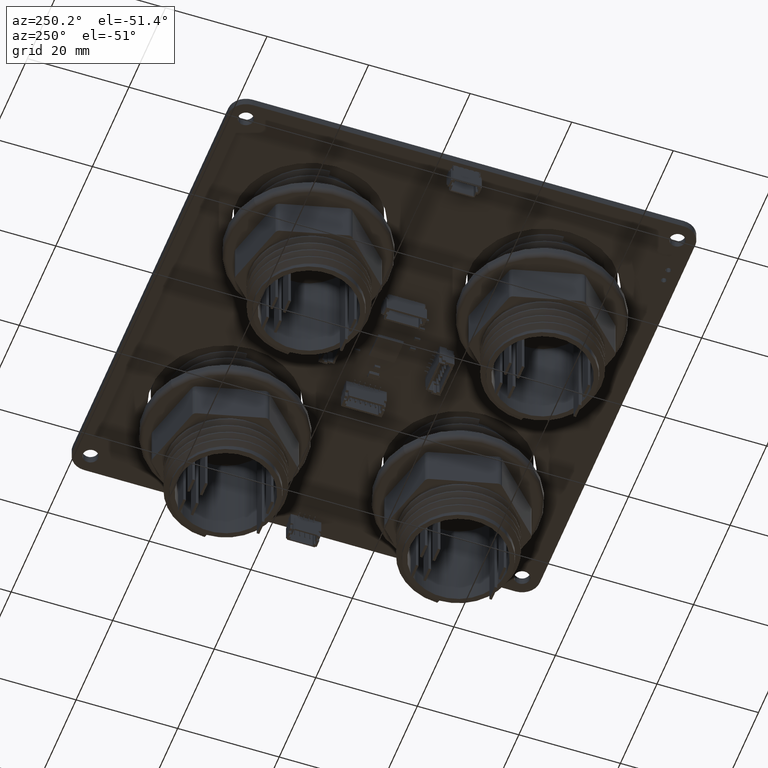
[diagram: clean part render]
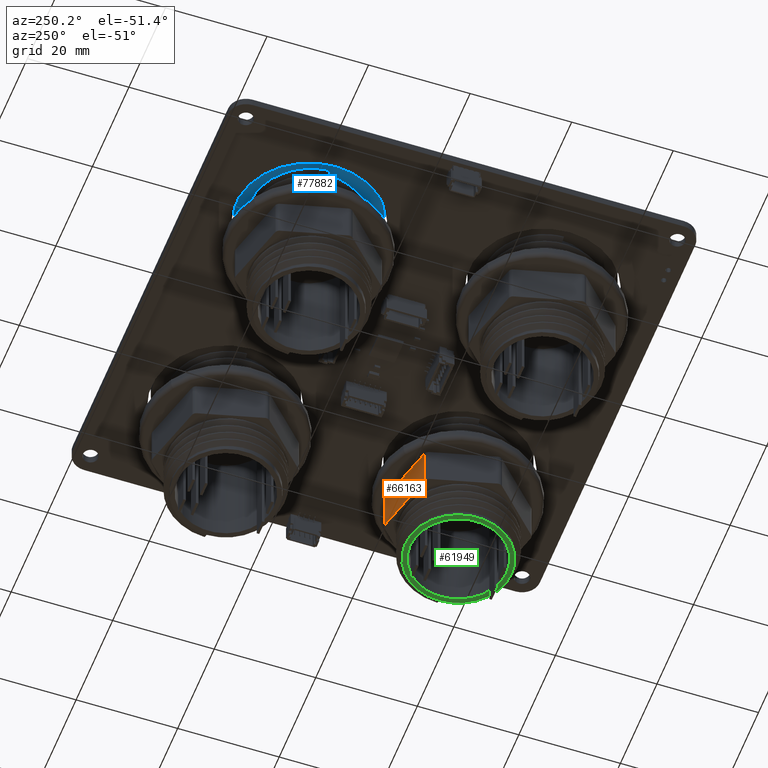
[diagram: same view with three faces highlighted in distinct colors, each labeled with its STEP entity id]
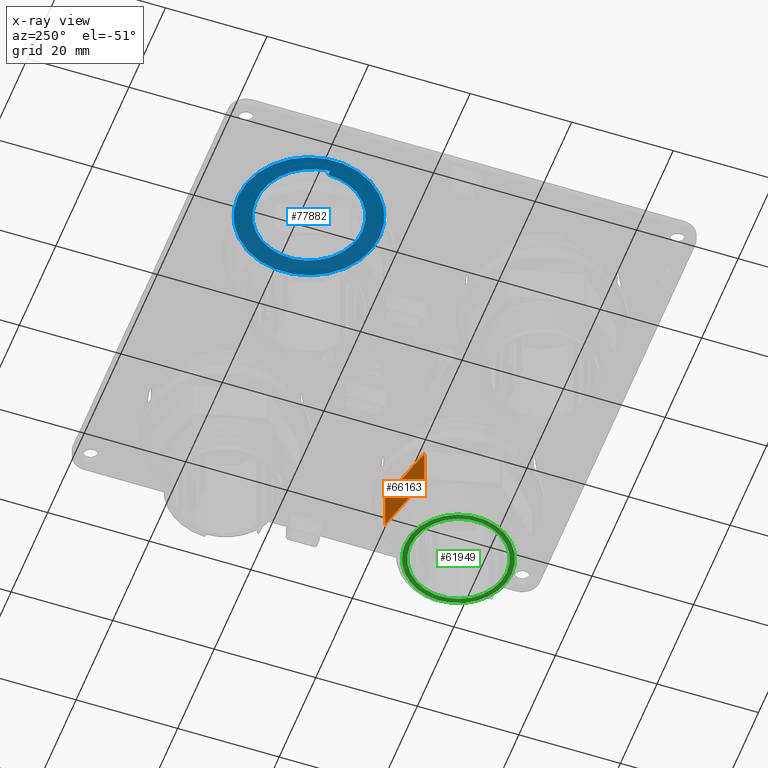
[diagram: x-ray of the same camera — body ghosted, the three highlighted faces saturated]
A machine part, auxiliary view with three faces highlighted in distinct colors.
The next image is the same camera in x-ray (body ghosted, the three faces saturated) — at least one of them is partly hidden behind the body in this view.
Their STEP definitions:

[orange] entity #66163 — the highlighted planar face has unit normal (0.2626, -0.9649, -0).
#65598 = VERTEX_POINT('',#65599);
#65599 = CARTESIAN_POINT('',(2.752181201963,8.,-13.29506795638));
#65615 = VERTEX_POINT('',#65616);
#65616 = CARTESIAN_POINT('',(2.752181201963,0.,-13.29506795638));
#65623 = EDGE_CURVE('',#65598,#65615,#65624,.T.);
#65624 = LINE('',#65625,#65626);
#65625 = CARTESIAN_POINT('',(2.752181201963,8.,-13.29506795638));
#65626 = VECTOR('',#65627,1.);
#65627 = DIRECTION('',(-0.,-1.,-0.));
#66163 = ADVANCED_FACE('',(#66164),#66189,.F.);
#66164 = FACE_BOUND('',#66165,.T.);
#66165 = EDGE_LOOP('',(#66166,#66174,#66182,#66188));
#66166 = ORIENTED_EDGE('',*,*,#66167,.T.);
#66167 = EDGE_CURVE('',#65615,#66168,#66170,.T.);
#66168 = VERTEX_POINT('',#66169);
#66169 = CARTESIAN_POINT('',(-9.445557339045,0.,-9.752680651398));
#66170 = LINE('',#66171,#66172);
#66171 = CARTESIAN_POINT('',(-3.346688068541,0.,-11.52387430389));
#66172 = VECTOR('',#66173,1.);
#66173 = DIRECTION('',(-0.960322858658,0.,0.278890672378));
#66174 = ORIENTED_EDGE('',*,*,#66175,.F.);
#66175 = EDGE_CURVE('',#66176,#66168,#66178,.T.);
#66176 = VERTEX_POINT('',#66177);
#66177 = CARTESIAN_POINT('',(-9.445557339045,8.,-9.752680651398));
#66178 = LINE('',#66179,#66180);
#66179 = CARTESIAN_POINT('',(-9.445557339045,8.,-9.752680651398));
#66180 = VECTOR('',#66181,1.);
#66181 = DIRECTION('',(-0.,-1.,-0.));
#66182 = ORIENTED_EDGE('',*,*,#66183,.F.);
#66183 = EDGE_CURVE('',#65598,#66176,#66184,.T.);
#66184 = LINE('',#66185,#66186);
#66185 = CARTESIAN_POINT('',(-3.346688068541,8.,-11.52387430389));
#66186 = VECTOR('',#66187,1.);
#66187 = DIRECTION('',(-0.960322858658,0.,0.278890672378));
#66188 = ORIENTED_EDGE('',*,*,#65623,.T.);
#66189 = PLANE('',#66190);
#66190 = AXIS2_PLACEMENT_3D('',#66191,#66192,#66193);
#66191 = CARTESIAN_POINT('',(-3.346688068541,8.,-11.52387430389));
#66192 = DIRECTION('',(0.278890672378,-0.,0.960322858658));
#66193 = DIRECTION('',(0.960322858658,0.,-0.278890672378));

[blue] entity #77882 — the highlighted planar face has unit normal (0, 0, -1).
#75857 = VERTEX_POINT('',#75858);
#75858 = CARTESIAN_POINT('',(1.714505518806E-15,28.,14.));
#75864 = EDGE_CURVE('',#75865,#75857,#75867,.T.);
#75865 = VERTEX_POINT('',#75866);
#75866 = CARTESIAN_POINT('',(0.,28.,-14.));
#75867 = CIRCLE('',#75868,14.);
#75868 = AXIS2_PLACEMENT_3D('',#75869,#75870,#75871);
#75869 = CARTESIAN_POINT('',(0.,28.,0.));
#75870 = DIRECTION('',(0.,-1.,-0.));
#75871 = DIRECTION('',(0.,0.,-1.));
#75997 = EDGE_CURVE('',#75998,#76000,#76002,.T.);
#75998 = VERTEX_POINT('',#75999);
#75999 = CARTESIAN_POINT('',(-1.772365136973E-07,28.,-10.5));
#76000 = VERTEX_POINT('',#76001);
#76001 = CARTESIAN_POINT('',(1.510301307541E-15,28.,10.5));
#76002 = B_SPLINE_CURVE_WITH_KNOTS('',3,(#76003,#76004,#76005,#76006,
    #76007,#76008,#76009,#76010,#76011,#76012,#76013,#76014,#76015,
    #76016,#76017,#76018,#76019,#76020),.UNSPECIFIED.,.F.,.F.,(4,2,2,2,2
    ,2,2,2,4),(0.,6.25E-02,0.125,0.1875,0.25,0.3125,0.375,0.4375,0.5),
  .UNSPECIFIED.);
#76003 = CARTESIAN_POINT('',(-1.772365136973E-07,28.,-10.5));
#76004 = CARTESIAN_POINT('',(1.374446785946,28.,-10.5));
#76005 = CARTESIAN_POINT('',(2.748352785772,28.,-10.22671310501));
#76006 = CARTESIAN_POINT('',(5.287999293894,28.,-9.17475707772));
#76007 = CARTESIAN_POINT('',(6.452740559737,28.,-8.396501845181));
#76008 = CARTESIAN_POINT('',(8.396501845181,28.,-6.452740559737));
#76009 = CARTESIAN_POINT('',(9.17475707772,28.,-5.287999293894));
#76010 = CARTESIAN_POINT('',(10.226713105017,28.,-2.748352785772));
#76011 = CARTESIAN_POINT('',(10.5,28.,-1.374446785946));
#76012 = CARTESIAN_POINT('',(10.5,28.,1.374446785946));
#76013 = CARTESIAN_POINT('',(10.226713105017,28.,2.748352785772));
#76014 = CARTESIAN_POINT('',(9.17475707772,28.,5.287999293894));
#76015 = CARTESIAN_POINT('',(8.396501845181,28.,6.452740559737));
#76016 = CARTESIAN_POINT('',(6.452740559737,28.,8.396501845181));
#76017 = CARTESIAN_POINT('',(5.287999293894,28.,9.17475707772));
#76018 = CARTESIAN_POINT('',(2.748352785772,28.,10.226713105017));
#76019 = CARTESIAN_POINT('',(1.374446785946,28.,10.5));
#76020 = CARTESIAN_POINT('',(1.510301307541E-15,28.,10.5));
#76846 = EDGE_CURVE('',#76000,#76847,#76849,.T.);
#76847 = VERTEX_POINT('',#76848);
#76848 = CARTESIAN_POINT('',(-10.5,28.,-1.285879139105E-15));
#76849 = B_SPLINE_CURVE_WITH_KNOTS('',3,(#76850,#76851,#76852,#76853,
    #76854,#76855,#76856,#76857,#76858,#76859),.UNSPECIFIED.,.F.,.F.,(4,
    2,2,2,4),(0.5,0.5625,0.625,0.6875,0.75),.UNSPECIFIED.);
#76850 = CARTESIAN_POINT('',(1.510301307541E-15,28.,10.5));
#76851 = CARTESIAN_POINT('',(-1.374446785946,28.,10.5));
#76852 = CARTESIAN_POINT('',(-2.748352785772,28.,10.226713105017));
#76853 = CARTESIAN_POINT('',(-5.287999293894,28.,9.17475707772));
#76854 = CARTESIAN_POINT('',(-6.452740559737,28.,8.396501845181));
#76855 = CARTESIAN_POINT('',(-8.396501845181,28.,6.452740559737));
#76856 = CARTESIAN_POINT('',(-9.17475707772,28.,5.287999293894));
#76857 = CARTESIAN_POINT('',(-10.22671310501,28.,2.748352785772));
#76858 = CARTESIAN_POINT('',(-10.5,28.,1.374446785946));
#76859 = CARTESIAN_POINT('',(-10.5,28.,-1.285879139105E-15));
#77882 = ADVANCED_FACE('',(#77883,#77893),#77934,.T.);
#77883 = FACE_BOUND('',#77884,.T.);
#77884 = EDGE_LOOP('',(#77885,#77886));
#77885 = ORIENTED_EDGE('',*,*,#75864,.T.);
#77886 = ORIENTED_EDGE('',*,*,#77887,.T.);
#77887 = EDGE_CURVE('',#75857,#75865,#77888,.T.);
#77888 = CIRCLE('',#77889,14.);
#77889 = AXIS2_PLACEMENT_3D('',#77890,#77891,#77892);
#77890 = CARTESIAN_POINT('',(0.,28.,0.));
#77891 = DIRECTION('',(0.,-1.,-0.));
#77892 = DIRECTION('',(0.,0.,-1.));
#77893 = FACE_BOUND('',#77894,.T.);
#77894 = EDGE_LOOP('',(#77895,#77926,#77932,#77933));
#77895 = ORIENTED_EDGE('',*,*,#77896,.T.);
#77896 = EDGE_CURVE('',#75998,#77897,#77899,.T.);
#77897 = VERTEX_POINT('',#77898);
#77898 = CARTESIAN_POINT('',(-11.36602539432,28.,-1.391936661819E-15));
#77899 = B_SPLINE_CURVE_WITH_KNOTS('',3,(#77900,#77901,#77902,#77903,
    #77904,#77905,#77906,#77907,#77908,#77909,#77910,#77911,#77912,
    #77913,#77914,#77915,#77916,#77917,#77918,#77919,#77920,#77921,
    #77922,#77923,#77924,#77925),.UNSPECIFIED.,.F.,.F.,(4,2,2,2,2,2,2,2,
    2,2,2,2,4),(0.,2.151686800025E-03,3.227530200038E-03,
    4.303373600051E-03,5.379217000063E-03,6.455060400076E-03,
    8.606747200102E-03,9.682590600114E-03,1.075843400013E-02,
    1.291012080015E-02,1.398596420017E-02,1.506180760018E-02,
    1.72134944002E-02),.UNSPECIFIED.);
#77900 = CARTESIAN_POINT('',(-1.772365136973E-07,28.,-10.5));
#77901 = CARTESIAN_POINT('',(-0.721854013166,28.,-10.53853346751));
#77902 = CARTESIAN_POINT('',(-1.438358996952,28.,-10.50270663095));
#77903 = CARTESIAN_POINT('',(-2.505205418497,28.,-10.33898607097));
#77904 = CARTESIAN_POINT('',(-2.86036269347,28.,-10.26552348493));
#77905 = CARTESIAN_POINT('',(-3.554088119708,28.,-10.08447737545));
#77906 = CARTESIAN_POINT('',(-3.894491267946,28.,-9.977103466843));
#77907 = CARTESIAN_POINT('',(-4.562807870701,28.,-9.729774197505));
#77908 = CARTESIAN_POINT('',(-4.890689098652,28.,-9.5897347684));
#77909 = CARTESIAN_POINT('',(-5.533754639886,28.,-9.276533887627));
#77910 = CARTESIAN_POINT('',(-5.850358812817,28.,-9.102474820967));
#77911 = CARTESIAN_POINT('',(-6.770065475984,28.,-8.53502934289));
#77912 = CARTESIAN_POINT('',(-7.336789875631,28.,-8.101743934292));
#77913 = CARTESIAN_POINT('',(-8.119284568101,28.,-7.371736052919));
#77914 = CARTESIAN_POINT('',(-8.368767947648,28.,-7.114955287655));
#77915 = CARTESIAN_POINT('',(-8.844359701039,28.,-6.573700130361));
#77916 = CARTESIAN_POINT('',(-9.068830927913,28.,-6.290670054514));
#77917 = CARTESIAN_POINT('',(-9.695134749076,28.,-5.419037619128));
#77918 = CARTESIAN_POINT('',(-10.05401863298,28.,-4.802935202377));
#77919 = CARTESIAN_POINT('',(-10.50379448527,28.,-3.825918927353));
#77920 = CARTESIAN_POINT('',(-10.63937222593,28.,-3.489625084311));
#77921 = CARTESIAN_POINT('',(-10.87544465544,28.,-2.811122368829));
#77922 = CARTESIAN_POINT('',(-10.97646127096,28.,-2.468228149685));
#77923 = CARTESIAN_POINT('',(-11.22956462082,28.,-1.428854984058));
#77924 = CARTESIAN_POINT('',(-11.33217339609,28.,-0.721785814803));
#77925 = CARTESIAN_POINT('',(-11.36602539432,28.,-1.391936661819E-15));
#77926 = ORIENTED_EDGE('',*,*,#77927,.T.);
#77927 = EDGE_CURVE('',#77897,#76847,#77928,.T.);
#77928 = LINE('',#77929,#77930);
#77929 = CARTESIAN_POINT('',(14.,28.,0.));
#77930 = VECTOR('',#77931,1.);
#77931 = DIRECTION('',(1.,0.,1.224646799147E-16));
#77932 = ORIENTED_EDGE('',*,*,#76846,.F.);
#77933 = ORIENTED_EDGE('',*,*,#75997,.F.);
#77934 = PLANE('',#77935);
#77935 = AXIS2_PLACEMENT_3D('',#77936,#77937,#77938);
#77936 = CARTESIAN_POINT('',(14.,28.,0.));
#77937 = DIRECTION('',(0.,-1.,-0.));
#77938 = DIRECTION('',(0.,0.,-1.));

[green] entity #61949 — the highlighted planar face has unit normal (0, 0, -1).
#59688 = VERTEX_POINT('',#59689);
#59689 = CARTESIAN_POINT('',(0.,0.,-9.5));
#59695 = EDGE_CURVE('',#59696,#59688,#59698,.T.);
#59696 = VERTEX_POINT('',#59697);
#59697 = CARTESIAN_POINT('',(1.16341445919E-15,0.,9.5));
#59698 = CIRCLE('',#59699,9.5);
#59699 = AXIS2_PLACEMENT_3D('',#59700,#59701,#59702);
#59700 = CARTESIAN_POINT('',(0.,0.,0.));
#59701 = DIRECTION('',(0.,-1.,0.));
#59702 = DIRECTION('',(0.,0.,-1.));
#60677 = VERTEX_POINT('',#60678);
#60678 = CARTESIAN_POINT('',(1.285879139105E-15,-1.836970198721E-16,10.5
    ));
#60684 = EDGE_CURVE('',#60685,#60677,#60687,.T.);
#60685 = VERTEX_POINT('',#60686);
#60686 = CARTESIAN_POINT('',(10.5,-1.836970198721E-16,0.));
#60687 = CIRCLE('',#60688,10.5);
#60688 = AXIS2_PLACEMENT_3D('',#60689,#60690,#60691);
#60689 = CARTESIAN_POINT('',(0.,-1.836970198721E-16,0.));
#60690 = DIRECTION('',(0.,-1.,-0.));
#60691 = DIRECTION('',(0.,0.,-1.));
#61310 = VERTEX_POINT('',#61311);
#61311 = CARTESIAN_POINT('',(0.,-1.836970198721E-16,-10.5));
#61317 = EDGE_CURVE('',#60677,#61310,#61318,.T.);
#61318 = CIRCLE('',#61319,10.5);
#61319 = AXIS2_PLACEMENT_3D('',#61320,#61321,#61322);
#61320 = CARTESIAN_POINT('',(0.,-1.836970198721E-16,0.));
#61321 = DIRECTION('',(0.,-1.,-0.));
#61322 = DIRECTION('',(0.,0.,-1.));
#61836 = EDGE_CURVE('',#61310,#60685,#61837,.T.);
#61837 = CIRCLE('',#61838,10.5);
#61838 = AXIS2_PLACEMENT_3D('',#61839,#61840,#61841);
#61839 = CARTESIAN_POINT('',(0.,-1.836970198721E-16,0.));
#61840 = DIRECTION('',(0.,-1.,-0.));
#61841 = DIRECTION('',(0.,0.,-1.));
#61949 = ADVANCED_FACE('',(#61950,#61960),#61965,.T.);
#61950 = FACE_BOUND('',#61951,.T.);
#61951 = EDGE_LOOP('',(#61952,#61959));
#61952 = ORIENTED_EDGE('',*,*,#61953,.F.);
#61953 = EDGE_CURVE('',#59688,#59696,#61954,.T.);
#61954 = CIRCLE('',#61955,9.5);
#61955 = AXIS2_PLACEMENT_3D('',#61956,#61957,#61958);
#61956 = CARTESIAN_POINT('',(0.,0.,0.));
#61957 = DIRECTION('',(0.,-1.,0.));
#61958 = DIRECTION('',(0.,0.,-1.));
#61959 = ORIENTED_EDGE('',*,*,#59695,.F.);
#61960 = FACE_BOUND('',#61961,.T.);
#61961 = EDGE_LOOP('',(#61962,#61963,#61964));
#61962 = ORIENTED_EDGE('',*,*,#60684,.T.);
#61963 = ORIENTED_EDGE('',*,*,#61317,.T.);
#61964 = ORIENTED_EDGE('',*,*,#61836,.T.);
#61965 = PLANE('',#61966);
#61966 = AXIS2_PLACEMENT_3D('',#61967,#61968,#61969);
#61967 = CARTESIAN_POINT('',(10.5,-9.184850993605E-17,0.));
#61968 = DIRECTION('',(0.,-1.,-0.));
#61969 = DIRECTION('',(0.,0.,-1.));